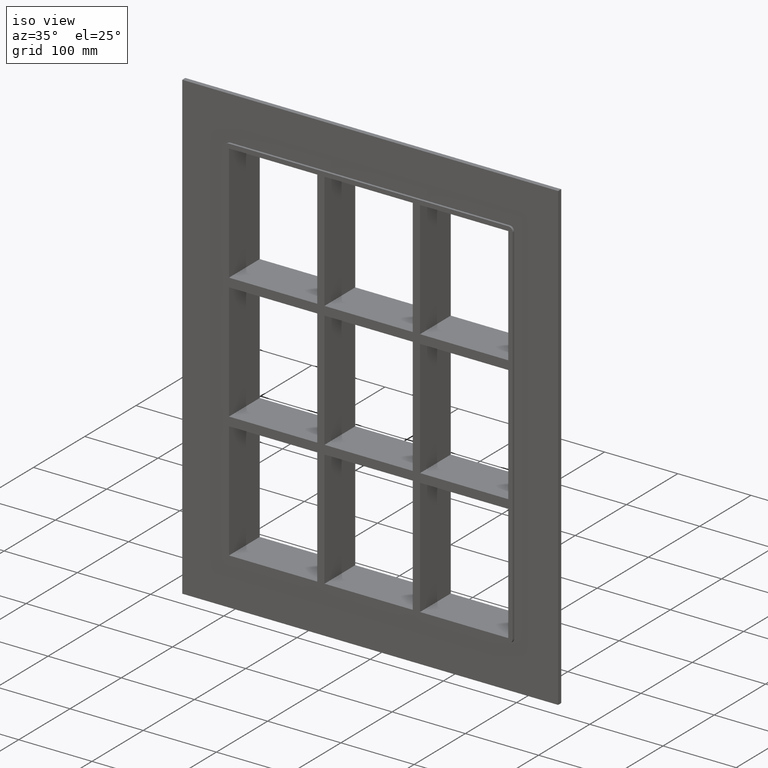
[diagram: clean part render]
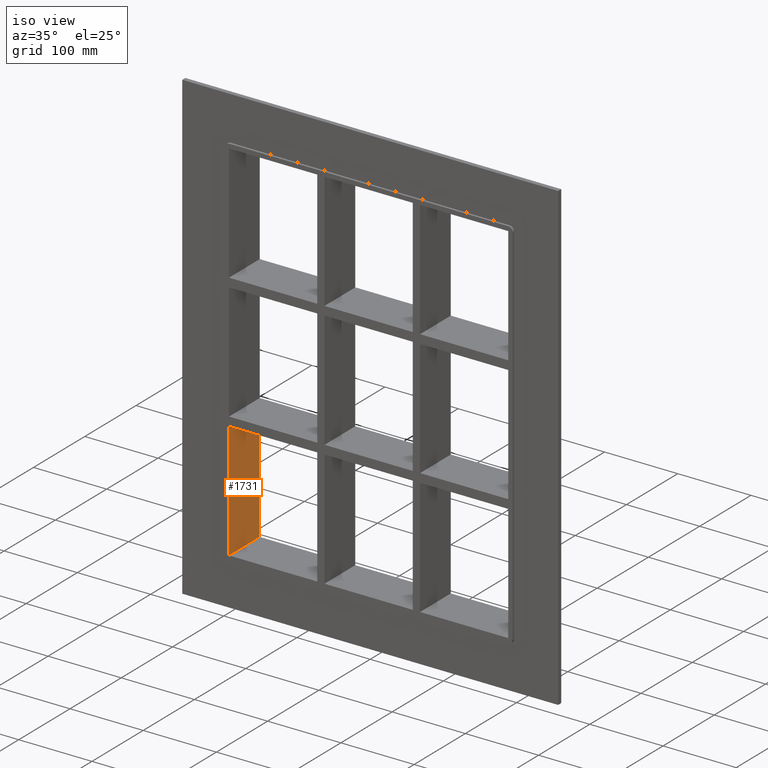
[diagram: same view with one face highlighted and labeled with its STEP entity id]
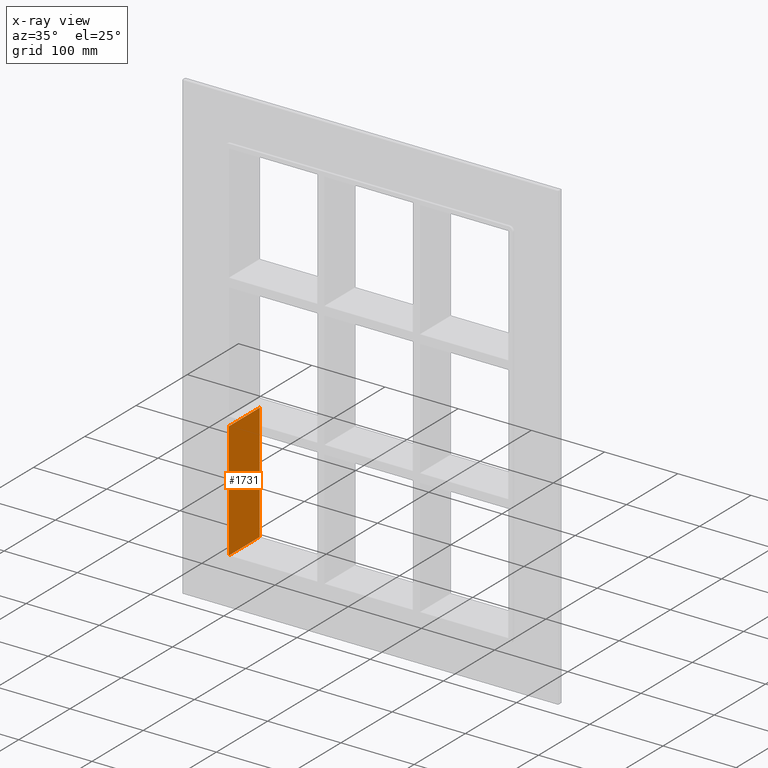
[diagram: x-ray of the same camera — body ghosted, the highlighted face saturated]
A machine part, iso view. The second image highlights one B-rep face of the part: STEP entity #1731.
The next image is the same camera in x-ray: the body ghosted, the highlighted face saturated — about 0% of this face is hidden behind the body in this view.
In plain terms, the highlighted planar face has unit normal (-1, 0, 0).
Its self-contained STEP definition (entity closure, byte-faithful):
#714=CARTESIAN_POINT('',(-190.74999999999977,57.0,-91.750000000009493));
#715=VERTEX_POINT('',#714);
#716=CARTESIAN_POINT('',(-190.75000000000011,57.0,-251.25000000000003));
#717=VERTEX_POINT('',#716);
#718=CARTESIAN_POINT('',(-190.75000000000011,57.0,-91.750000000009493));
#719=DIRECTION('',(0.0,0.0,-1.0));
#720=VECTOR('',#719,159.49999999999054);
#721=LINE('',#718,#720);
#722=EDGE_CURVE('',#715,#717,#721,.T.);
#1179=CARTESIAN_POINT('',(-190.74999999999977,-3.0,-91.750000000009493));
#1180=VERTEX_POINT('',#1179);
#1195=CARTESIAN_POINT('',(-190.75000000000011,-3.0,-251.25000000000003));
#1196=VERTEX_POINT('',#1195);
#1203=CARTESIAN_POINT('',(-190.75000000000011,-3.0,-251.25000000000003));
#1204=DIRECTION('',(0.0,0.0,1.0));
#1205=VECTOR('',#1204,159.49999999999054);
#1206=LINE('',#1203,#1205);
#1207=EDGE_CURVE('',#1196,#1180,#1206,.T.);
#1294=CARTESIAN_POINT('',(-190.75000000000011,57.000000000000007,-91.750000000009507));
#1295=DIRECTION('',(0.0,-1.0,0.0));
#1296=VECTOR('',#1295,60.000000000000007);
#1297=LINE('',#1294,#1296);
#1298=EDGE_CURVE('',#715,#1180,#1297,.T.);
#1410=CARTESIAN_POINT('',(-190.75000000000011,-3.0,-251.25000000000003));
#1411=DIRECTION('',(0.0,1.0,0.0));
#1412=VECTOR('',#1411,60.0);
#1413=LINE('',#1410,#1412);
#1414=EDGE_CURVE('',#1196,#717,#1413,.T.);
#1720=CARTESIAN_POINT('',(-190.75000000000011,0.0,-251.25000000000003));
#1721=DIRECTION('',(-1.0,0.0,0.0));
#1722=DIRECTION('',(0.0,0.0,1.0));
#1723=AXIS2_PLACEMENT_3D('',#1720,#1721,#1722);
#1724=PLANE('',#1723);
#1725=ORIENTED_EDGE('',*,*,#1298,.T.);
#1726=ORIENTED_EDGE('',*,*,#1207,.F.);
#1727=ORIENTED_EDGE('',*,*,#1414,.T.);
#1728=ORIENTED_EDGE('',*,*,#722,.F.);
#1729=EDGE_LOOP('',(#1725,#1726,#1727,#1728));
#1730=FACE_OUTER_BOUND('',#1729,.T.);
#1731=ADVANCED_FACE('',(#1730),#1724,.F.);